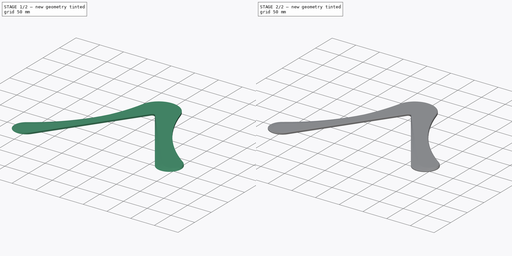
[diagram: build sequence overview — one tinted view per stage of 2, left to right]
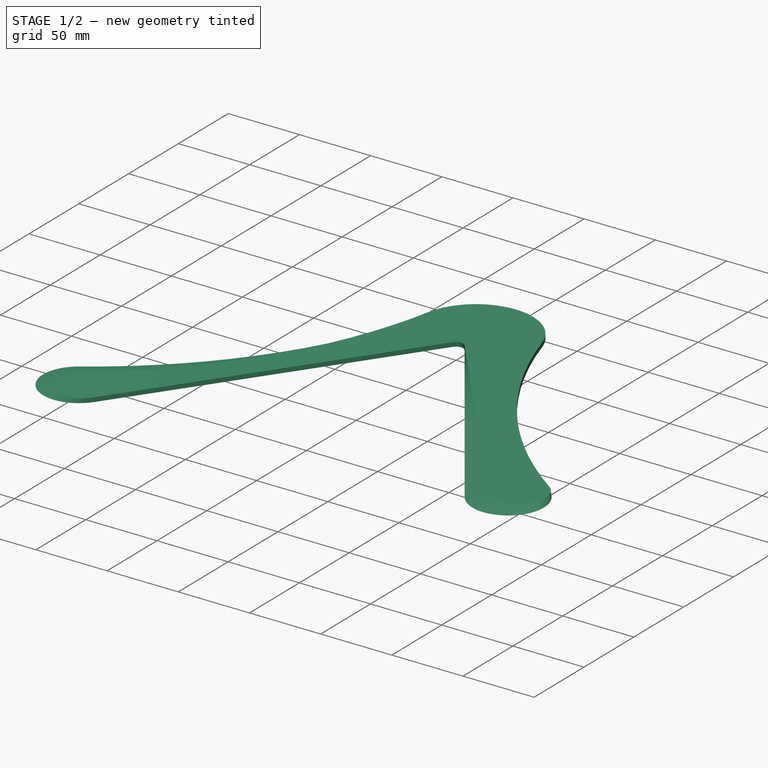
[diagram: stage 1 of 2 — iso view after this stage's code; geometry added in this stage tinted green]
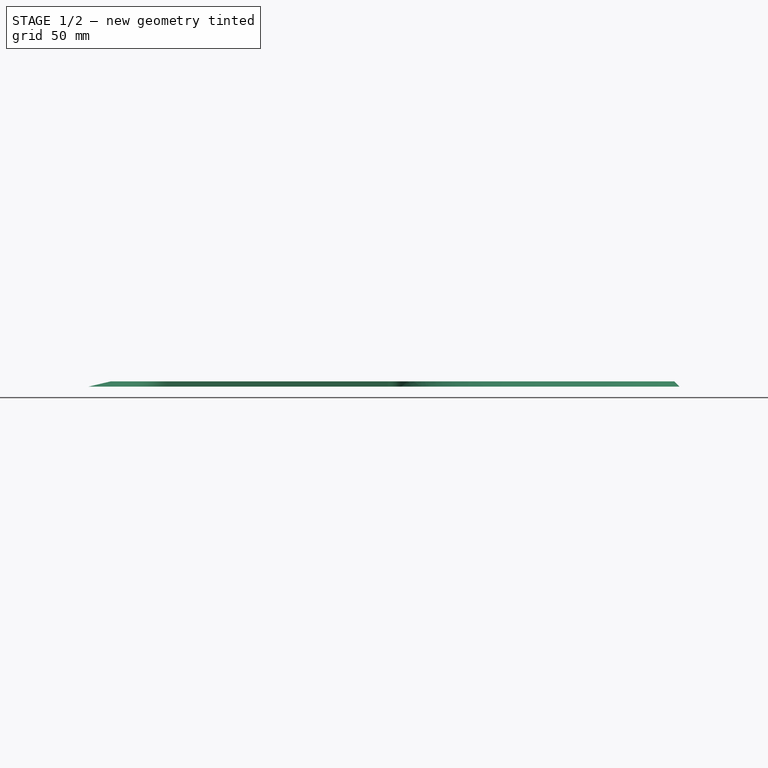
[diagram: stage 1 of 2 — front view after this stage's code; geometry added in this stage tinted green]
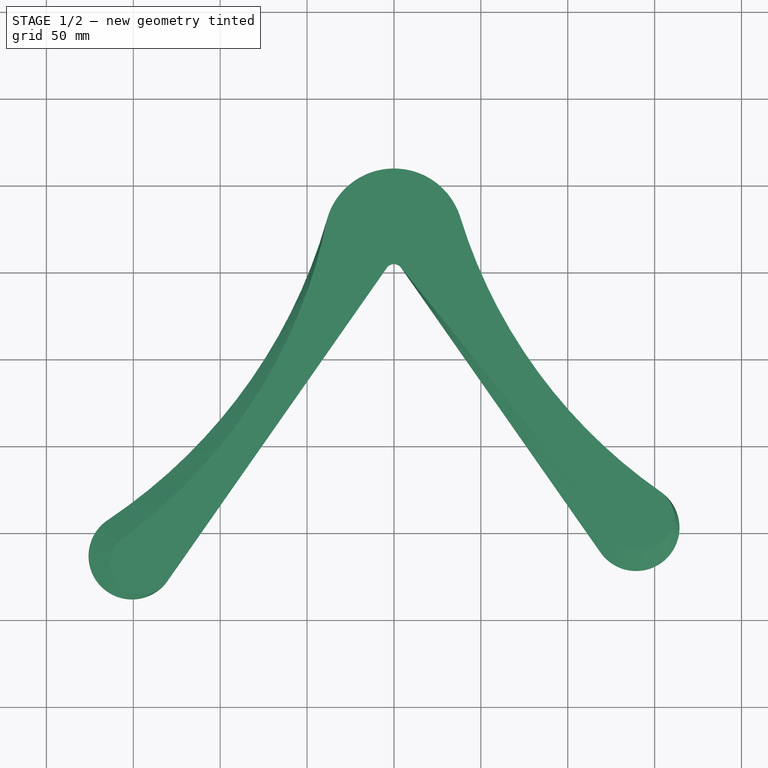
[diagram: stage 1 of 2 — top view after this stage's code; geometry added in this stage tinted green]
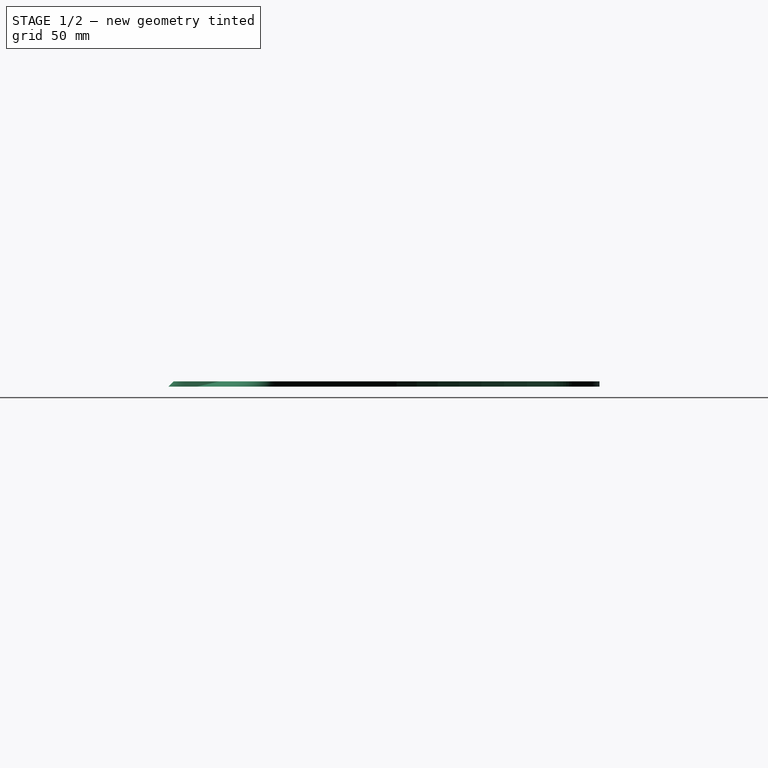
[diagram: stage 1 of 2 — right view after this stage's code; geometry added in this stage tinted green]
FCSTD DOCUMENT  (FreeCAD 0.18R16146 (Git))
Label: boomerang
License: All rights reserved
LicenseURL: http://en.wikipedia.org/wiki/All_rights_reserved
objects: Sketcher::SketchObject×2, Part::Loft×1, PartDesign::FeatureBase×1, PartDesign::Pad×1, PartDesign::Fillet×1, PartDesign::Body×1
note: 8 computed .brp shape members not serialized (recipe doc carries the construction recipe); baked Part::Feature solids carry a one-line shape summary decoded from their .brp

FEATURE [Sketcher::SketchObject] Sketch  label="outline-bottom"
  sketch-geometry (8):
    g0: LineSegment StartX=-4.09576 StartY=2.86788 StartZ=0 EndX=-130.283 EndY=-177.346 EndZ=0
    g1: LineSegment StartX=4.09576 StartY=2.86788 StartZ=0 EndX=118.811 EndY=-160.963 EndZ=0
    g2: ArcOfCircle CenterX=0 CenterY=0 CenterZ=0 NormalX=0 NormalY=0 NormalZ=1 AngleXU=0 Radius=5 StartAngle=0.610865 EndAngle=2.53073
    g3: ArcOfCircle CenterX=0 CenterY=20 CenterZ=0 NormalX=0 NormalY=0 NormalZ=1 AngleXU=0 Radius=40 StartAngle=0.298996 EndAngle=2.86471
    g4: ArcOfCircle CenterX=-150.761 CenterY=-163.006 CenterZ=0 NormalX=0 NormalY=0 NormalZ=1 AngleXU=0 Radius=25 StartAngle=2.1591 EndAngle=5.67232
    g5: ArcOfCircle CenterX=139.29 CenterY=-146.623 CenterZ=0 NormalX=0 NormalY=0 NormalZ=1 AngleXU=0 Radius=25 StartAngle=3.75246 EndAngle=7.24607
    g6: ArcOfCircle CenterX=-336.669 CenterY=115.675 CenterZ=0 NormalX=0 NormalY=0 NormalZ=1 AngleXU=0 Radius=310 StartAngle=5.30069 EndAngle=6.0063
    g7: ArcOfCircle CenterX=324.915 CenterY=120.151 CenterZ=0 NormalX=0 NormalY=0 NormalZ=1 AngleXU=0 Radius=300 StartAngle=3.44059 EndAngle=4.10448
  constraints (21):
    c: Coincident(g2,g-1)
    c: Tangent(g6,g4) = 1.5708
    c: Tangent(g2,g0) = -1.5708
    c: Tangent(g0,g4) = 1.5708
    c: Tangent(g3,g6) = 1.5708
    c: Tangent(g2,g1) = 1.5708
    c: Equal(g4,g5)
    c: Radius(g5) = 25
    c: Tangent(g5,g1) = -1.5708
    c: Tangent(g5,g7) = 1.5708
    c: Angle(g0,g1) = 1.22173
    c: Angle(g-2,g1) = 0.610865
    c: Radius(g2) = 5
    c: Tangent(g7,g3) = 1.5708
    c: Distance(g0) = 220
    c: Distance(g1) = 200
    c: Radius(g7) = 300
    c: Radius(g6) = 310
    c: Radius(g3) = 40
    c: PointOnObject(g3,g-2)
    c: Distance(g3,g-1) = 20
FEATURE [Sketcher::SketchObject] Sketch001  label="outline-top"
  Placement = pos=(0,0,3) rot=(0,0,1;0rad)
  expr: Constraints[18] = Sketch.Constraints[18]
  expr: Constraints[16] = Sketch.Constraints[16]
  expr: Constraints[20] = Sketch.Constraints[20]
  expr: Constraints[15] = Sketch.Constraints[15]
  expr: Constraints[17] = Sketch.Constraints[17]
  expr: Constraints[14] = Sketch.Constraints[14]
  expr: Constraints[12] = Sketch.Constraints[12]
  expr: Constraints[11] = Sketch.Constraints[11]
  expr: Constraints[10] = Sketch.Constraints[10]
  expr: Constraints[7] = Sketch.Constraints[7]
  sketch-geometry (12):
    g0: LineSegment StartX=-4.09576 StartY=2.86788 StartZ=0 EndX=-130.283 EndY=-177.346 EndZ=0
    g1: LineSegment [constr] StartX=4.09576 StartY=2.86788 StartZ=0 EndX=118.811 EndY=-160.963 EndZ=0
    g2: ArcOfCircle CenterX=0 CenterY=0 CenterZ=0 NormalX=0 NormalY=0 NormalZ=1 AngleXU=0 Radius=5 StartAngle=0.610865 EndAngle=2.53073
    g3: ArcOfCircle CenterX=0 CenterY=20 CenterZ=0 NormalX=0 NormalY=0 NormalZ=1 AngleXU=0 Radius=40 StartAngle=0.298996 EndAngle=2.86471
    g4: ArcOfCircle [constr] CenterX=-150.761 CenterY=-163.006 CenterZ=0 NormalX=0 NormalY=0 NormalZ=1 AngleXU=0 Radius=25 StartAngle=2.1591 EndAngle=5.67232
    g5: ArcOfCircle [constr] CenterX=139.29 CenterY=-146.623 CenterZ=0 NormalX=0 NormalY=0 NormalZ=1 AngleXU=0 Radius=25 StartAngle=3.75246 EndAngle=7.24607
    g6: ArcOfCircle [constr] CenterX=-336.669 CenterY=115.675 CenterZ=0 NormalX=0 NormalY=0 NormalZ=1 AngleXU=0 Radius=310 StartAngle=5.30069 EndAngle=6.0063
    g7: ArcOfCircle CenterX=324.915 CenterY=120.151 CenterZ=0 NormalX=0 NormalY=0 NormalZ=1 AngleXU=0 Radius=300 StartAngle=3.44059 EndAngle=4.10448
    g8: LineSegment StartX=4.09576 StartY=2.86788 StartZ=0 EndX=129.283 EndY=-152.185 EndZ=0
    g9: ArcOfCircle CenterX=-332.66 CenterY=89.724 CenterZ=0 NormalX=0 NormalY=0 NormalZ=1 AngleXU=0 Radius=300 StartAngle=5.3435 EndAngle=6.08594
    g10: ArcOfCircle CenterX=-145.027 CenterY=-167.021 CenterZ=0 NormalX=0 NormalY=0 NormalZ=1 AngleXU=0 Radius=18 StartAngle=2.2019 EndAngle=5.67232
    g11: ArcOfCircle CenterX=143.288 CenterY=-140.877 CenterZ=0 NormalX=0 NormalY=0 NormalZ=1 AngleXU=0 Radius=18 StartAngle=3.82082 EndAngle=7.24607
  constraints (30):
    c: Coincident(g2,g-1)
    c: Tangent(g6,g4) = 1.5708
    c: Tangent(g2,g0) = -1.5708
    c: Tangent(g0,g4) = 1.5708
    c: Tangent(g3,g6) = 1.5708
    c: Tangent(g2,g1) = 1.5708
    c: Equal(g4,g5)
    c: Radius(g5) = 25
    c: Tangent(g5,g1) = -1.5708
    c: Tangent(g5,g7) = 1.5708
    c: Angle(g0,g1) = 1.22173
    c: Angle(g-2,g1) = 0.610865
    c: Radius(g2) = 5
    c: Tangent(g7,g3) = 1.5708
    c: Distance(g0) = 220
    c: Distance(g1) = 200
    c: Radius(g7) = 300
    c: Radius(g6) = 310
    c: Radius(g3) = 40
    c: PointOnObject(g3,g-2)
    c: Distance(g3,g-1) = 20
    c: Coincident(g9,g3)
    c: Tangent(g9,g10) = 1.5708
    c: Tangent(g10,g0) = 1.5708
    c: Radius(g10) = 18
    c: Radius(g9) = 300
    c: Equal(g10,g11)
    c: Tangent(g7,g11) = 1.5708
    c: Tangent(g11,g8) = -1.5708
    c: Coincident(g8,g2)
FEATURE [Part::Loft] Loft
  Closed = false
  MaxDegree = 5
  Ruled = false
  Sections = -> [Sketch,Sketch001]
  Solid = true
FEATURE [PartDesign::FeatureBase] BaseFeature
  BaseFeature = -> Loft
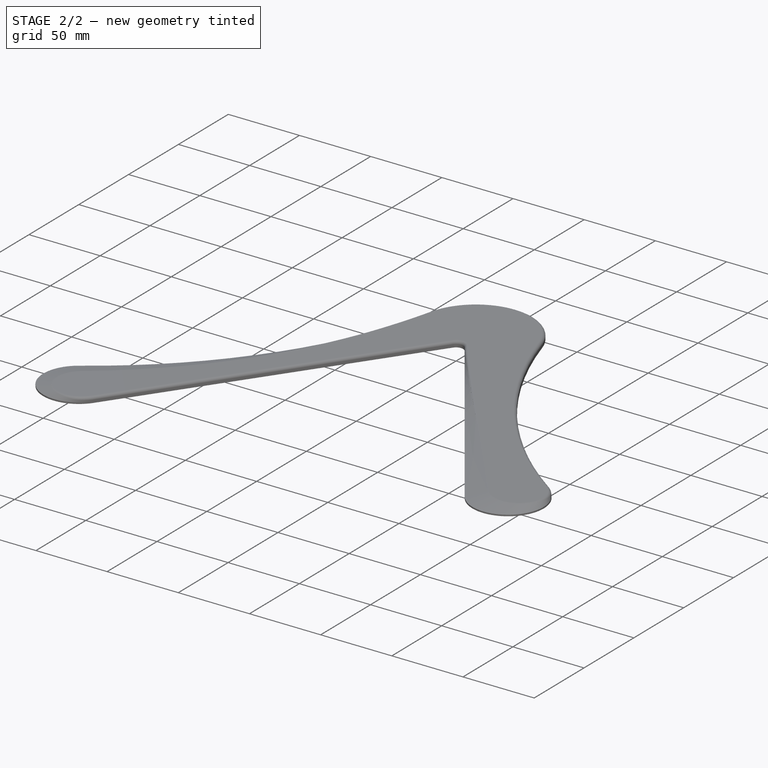
[diagram: stage 2 of 2 — iso view after this stage's code; geometry added in this stage tinted green]
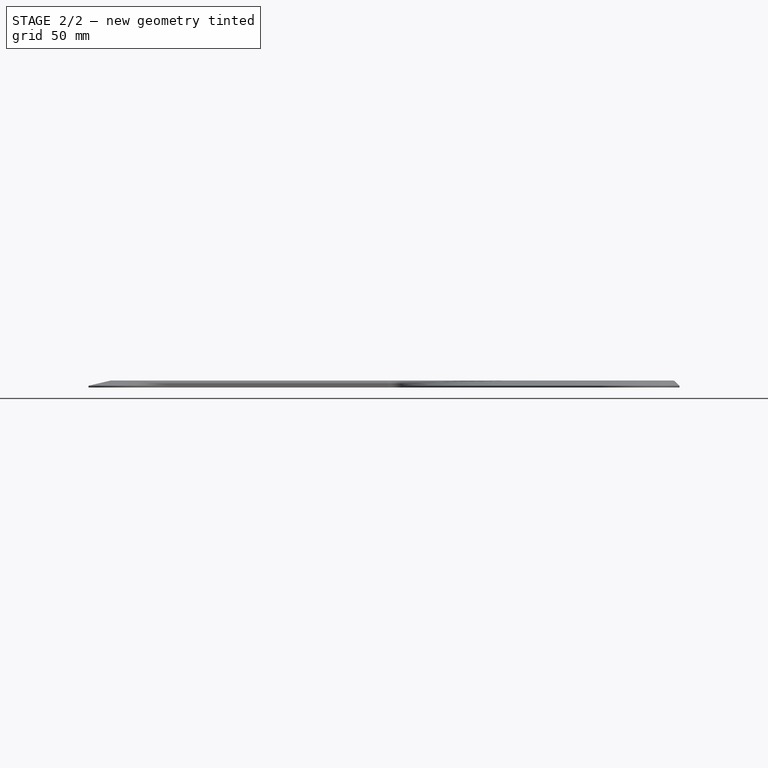
[diagram: stage 2 of 2 — front view after this stage's code; geometry added in this stage tinted green]
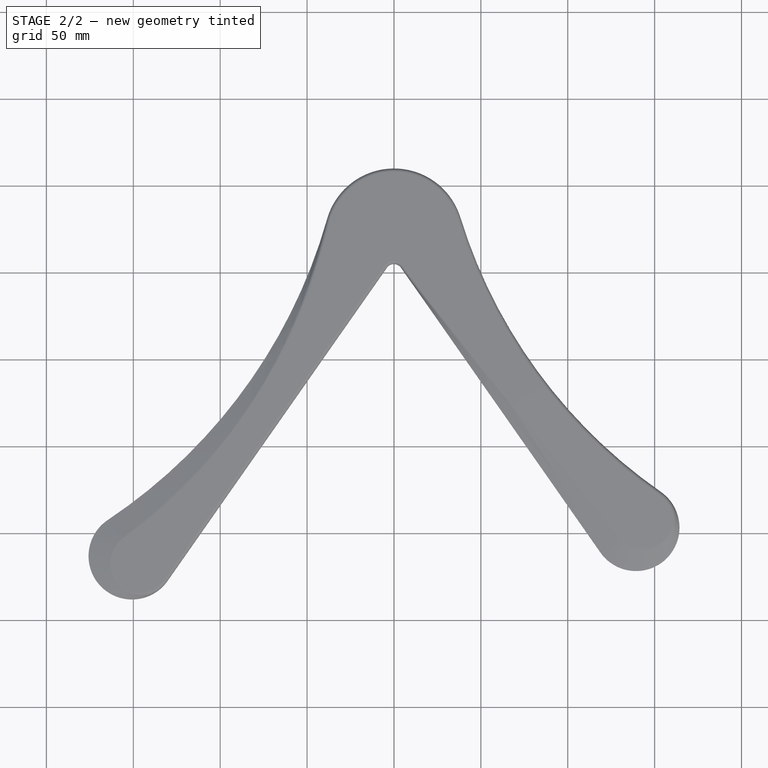
[diagram: stage 2 of 2 — top view after this stage's code; geometry added in this stage tinted green]
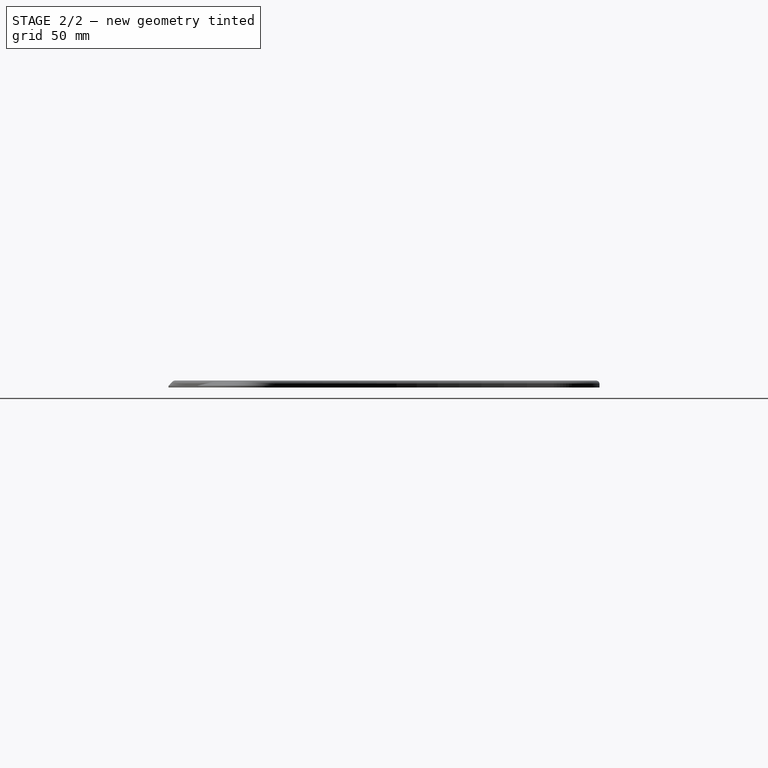
[diagram: stage 2 of 2 — right view after this stage's code; geometry added in this stage tinted green]
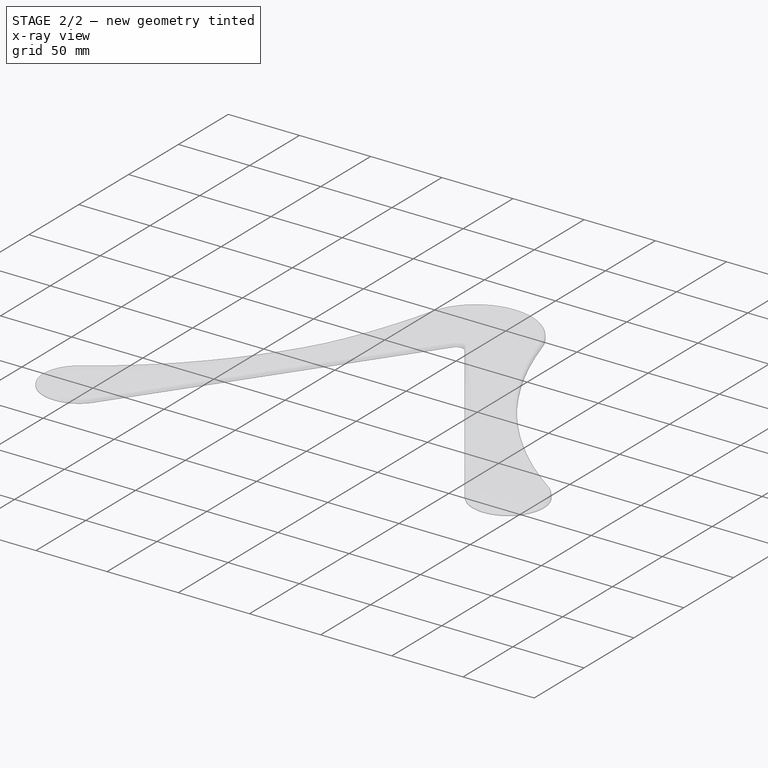
[diagram: stage 2 of 2 — x-ray composite at the iso view; earlier geometry ghosted, this stage's added geometry solid]
FEATURE [PartDesign::Pad] Pad
  BaseFeature = -> BaseFeature
  Length = 1
  Length2 = 100
  Profile = -> Sketch
  Reversed = true
  Type = 0
FEATURE [PartDesign::Fillet] Fillet
  Base = -> Pad [Face4]
  BaseFeature = -> Pad
  Radius = 2
FEATURE [PartDesign::Body] Body
  BaseFeature = -> Loft
  Group = -> [BaseFeature,Sketch001,Sketch,Pad,Fillet]
  Origin = -> Origin
  Tip = -> Fillet
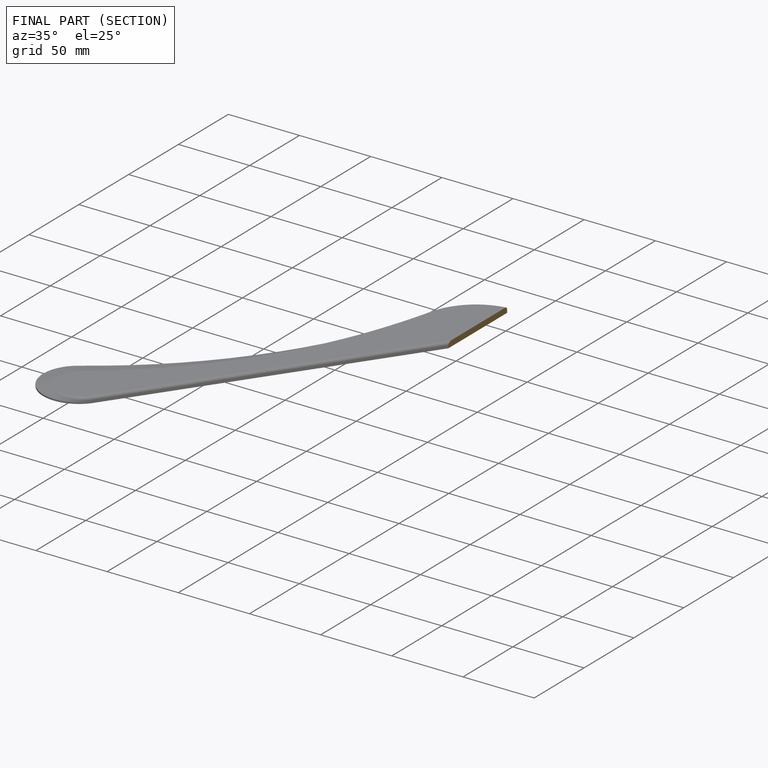
[diagram: finished part — half-section view (interior)]
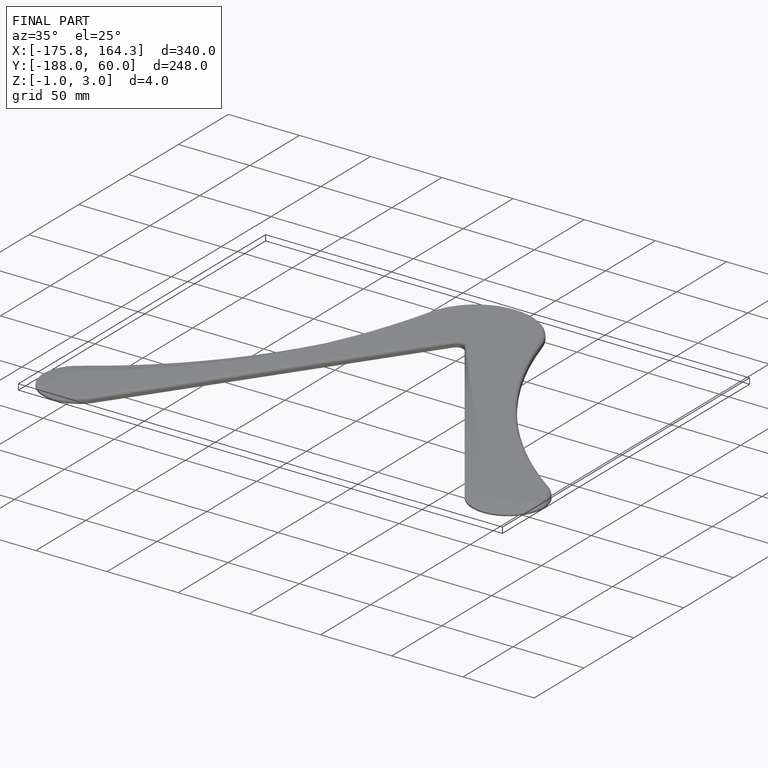
[diagram: finished part — iso view with bounding-box wireframe]
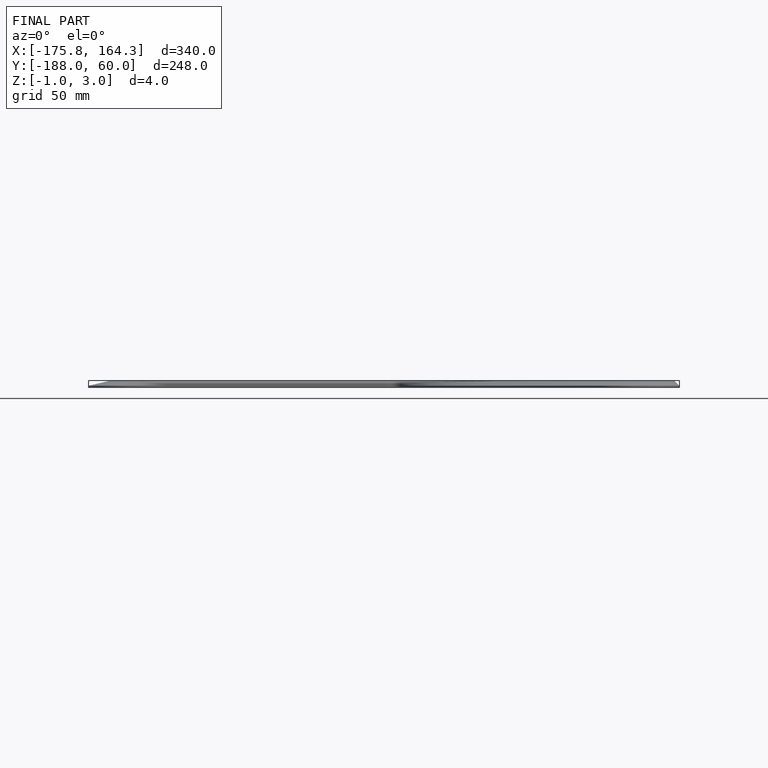
[diagram: finished part — front view with bounding-box wireframe]
